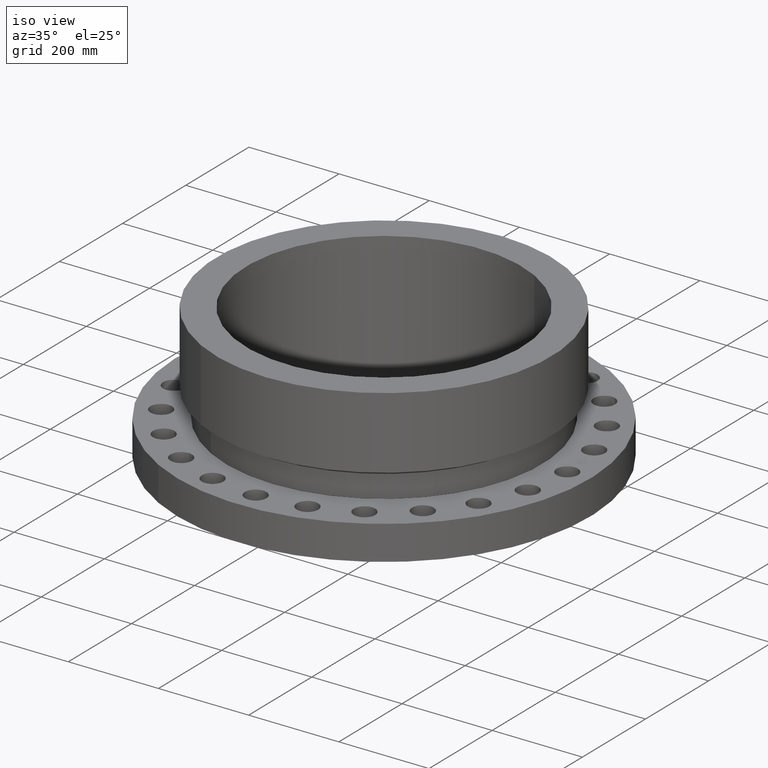
[diagram: clean part render]
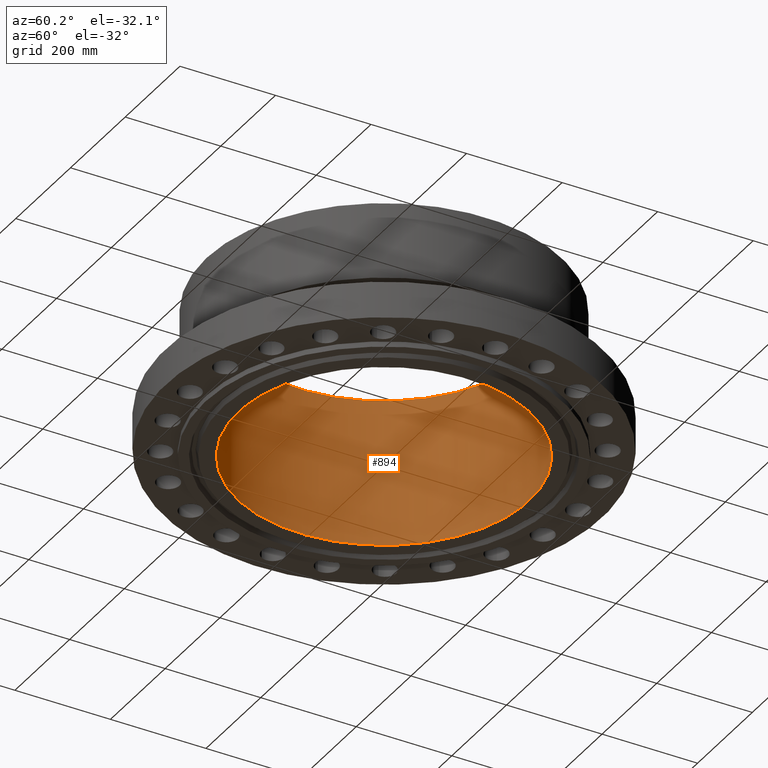
[diagram: tour spotlight — one face highlighted and labeled with its STEP entity id]
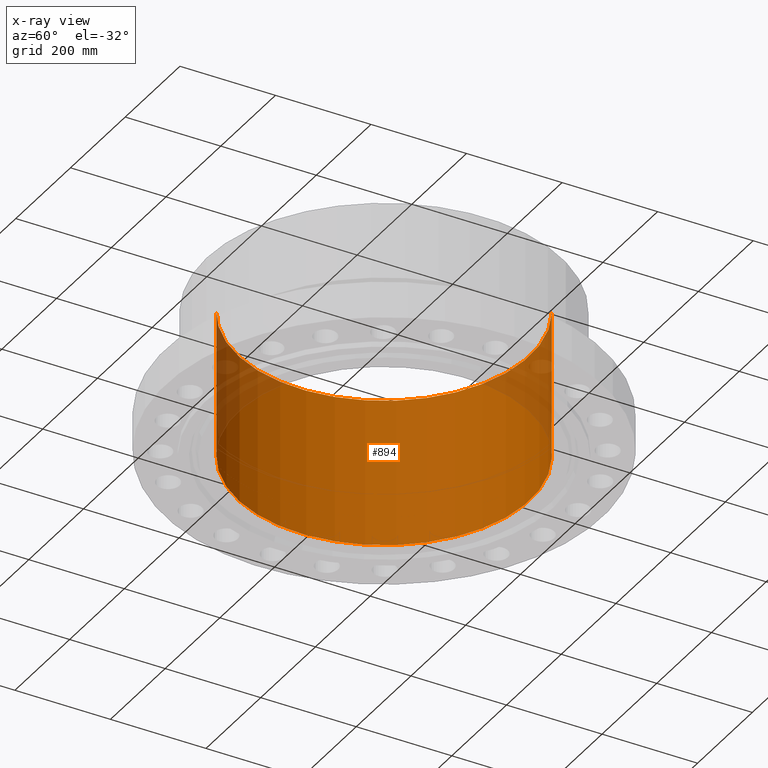
[diagram: x-ray of the same camera — body ghosted, this tour face saturated]
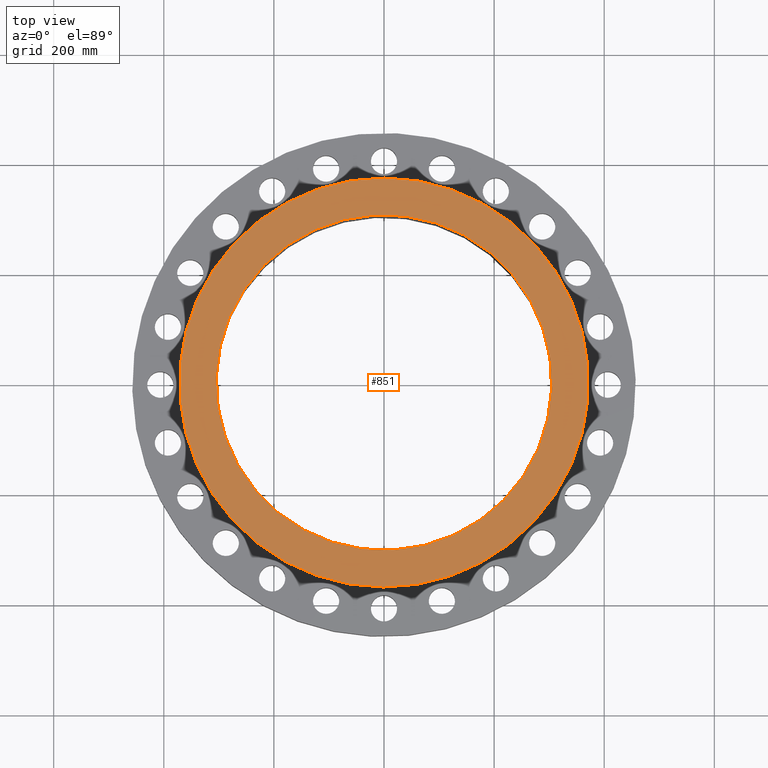
[diagram: tour spotlight — one face highlighted and labeled with its STEP entity id]
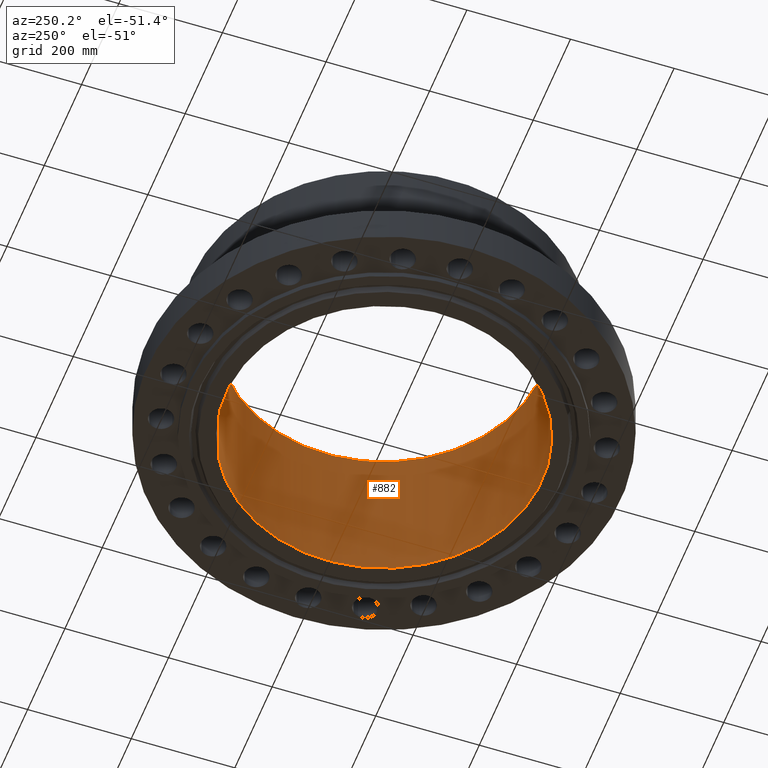
[diagram: tour spotlight — one face highlighted and labeled with its STEP entity id]
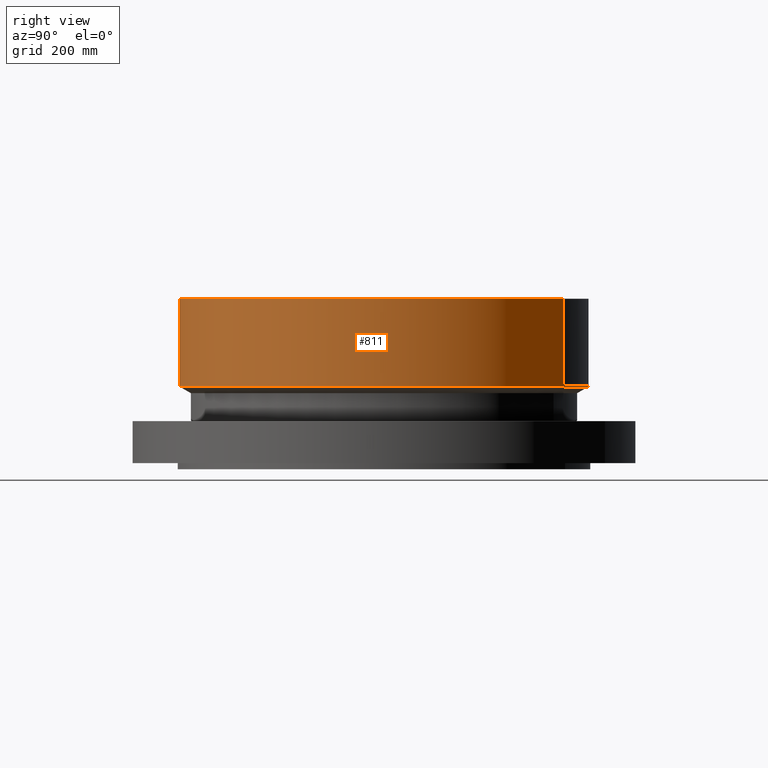
[diagram: tour spotlight — one face highlighted and labeled with its STEP entity id]
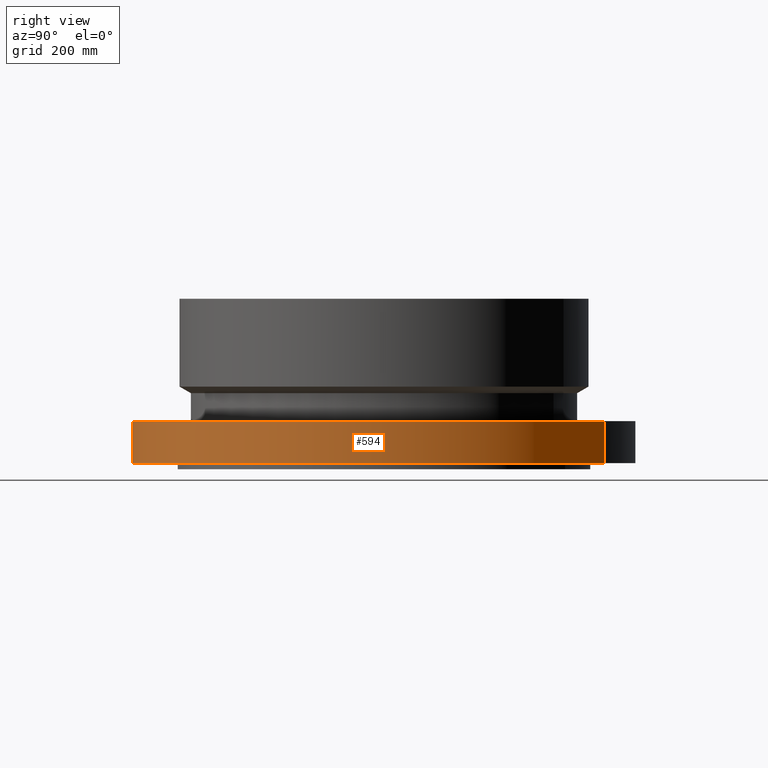
[diagram: tour spotlight — one face highlighted and labeled with its STEP entity id]
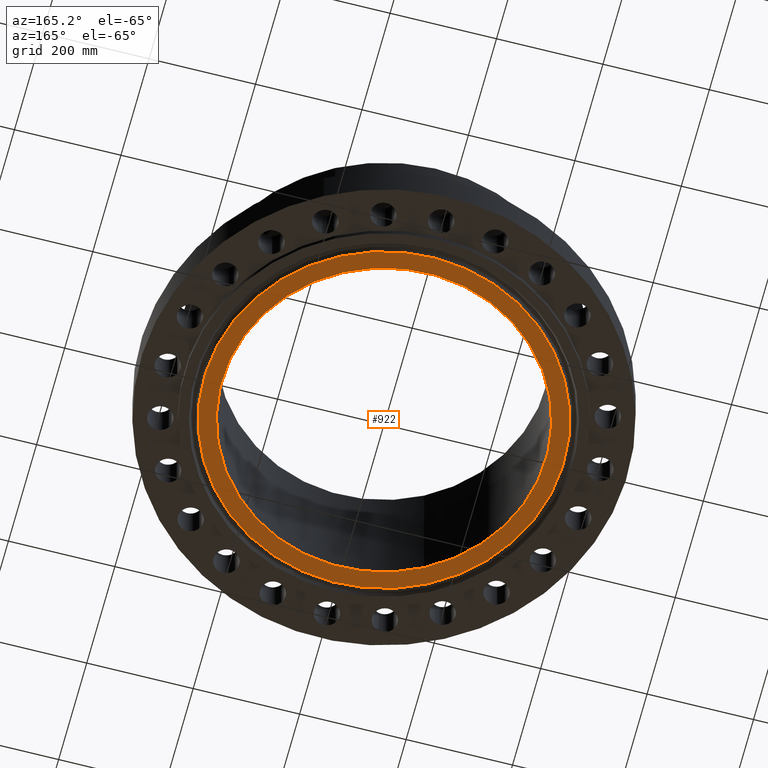
[diagram: tour spotlight — one face highlighted and labeled with its STEP entity id]
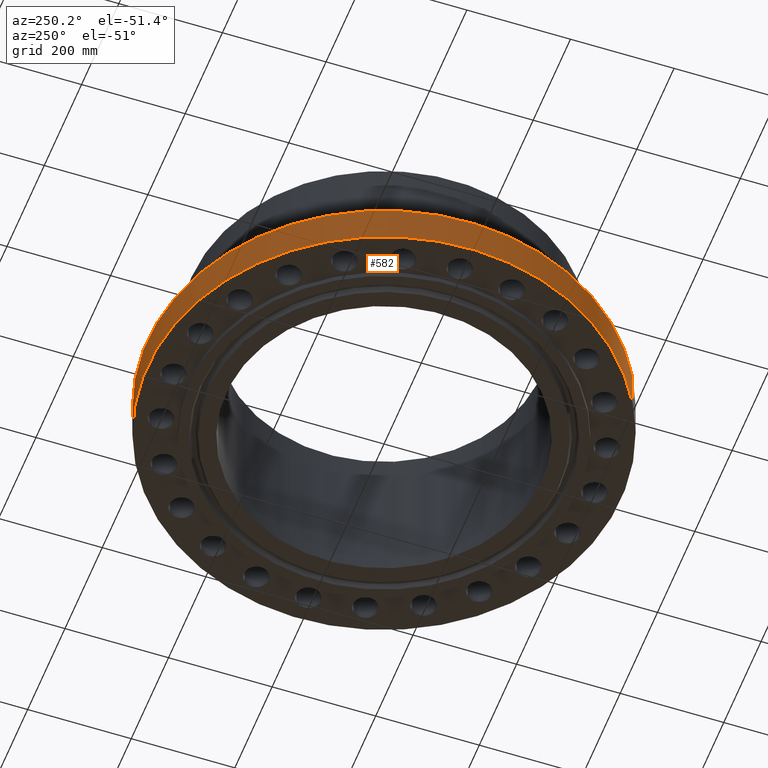
[diagram: tour spotlight — one face highlighted and labeled with its STEP entity id]
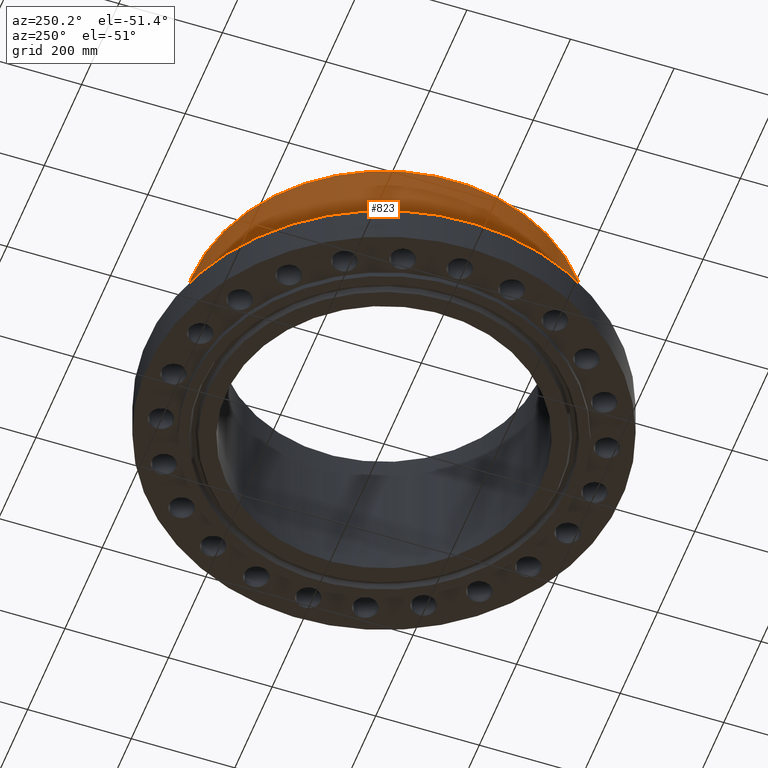
[diagram: tour spotlight — one face highlighted and labeled with its STEP entity id]
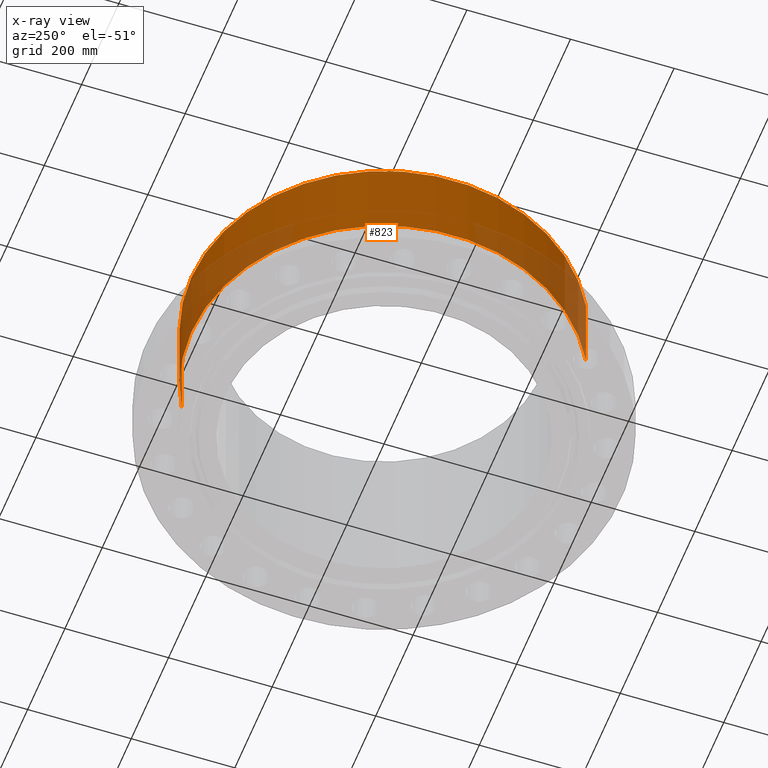
[diagram: x-ray of the same camera — body ghosted, this tour face saturated]
A machine part: a face-by-face anatomy tour. The part has 463 B-rep faces; the first image is the clean iso view, then the 8 largest visible faces are spotlighted one at a time (largest first), each with its STEP entity span.

Face 1 — auxiliary view, entity #894. An x-ray twin of the same camera follows (body ghosted, this face saturated) — the face is partly hidden behind the body. In plain terms, the highlighted cylindrical surface (partial cylindrical patch) has radius 304.8 mm, axis along (0, 0, -1).
Definition (entity closure, byte-faithful):
#835=AXIS2_PLACEMENT_3D('Circle Axis2P3D',#833,#834,$) ;
#855=AXIS2_PLACEMENT_3D('Cylinder Axis2P3D',#852,#853,#854) ;
#885=AXIS2_PLACEMENT_3D('Circle Axis2P3D',#883,#884,$) ;
#833=CARTESIAN_POINT('Axis2P3D Location',(0.,0.,11.75)) ;
#837=CARTESIAN_POINT('Vertex',(-5.75310646327,-10.5309907427,11.75)) ;
#839=CARTESIAN_POINT('Vertex',(5.75310646327,10.5309907427,11.75)) ;
#852=CARTESIAN_POINT('Axis2P3D Location',(0.,0.,5.65600000002)) ;
#857=CARTESIAN_POINT('Line Origine',(5.75310646327,10.5309907427,5.65600000002)) ;
#861=CARTESIAN_POINT('Vertex',(5.75310646327,10.5309907427,-0.438000000002)) ;
#868=CARTESIAN_POINT('Vertex',(-5.75310646327,-10.5309907427,-0.438000000002)) ;
#871=CARTESIAN_POINT('Line Origine',(-5.75310646327,-10.5309907427,5.65600000002)) ;
#883=CARTESIAN_POINT('Axis2P3D Location',(0.,0.,-0.438000000002)) ;
#834=DIRECTION('Axis2P3D Direction',(0.,0.,-0.0393700787402)) ;
#853=DIRECTION('Axis2P3D Direction',(0.,0.,-0.0393700787402)) ;
#854=DIRECTION('Axis2P3D XDirection',(-0.0188750212049,-0.0345504945626,0.)) ;
#858=DIRECTION('Vector Direction',(0.,0.,-0.0393700787402)) ;
#872=DIRECTION('Vector Direction',(0.,0.,-0.0393700787402)) ;
#884=DIRECTION('Axis2P3D Direction',(0.,0.,-0.0393700787402)) ;
#859=VECTOR('Line Direction',#858,0.0393700787402) ;
#873=VECTOR('Line Direction',#872,0.0393700787402) ;
#889=ORIENTED_EDGE('',*,*,#841,.F.) ;
#890=ORIENTED_EDGE('',*,*,#875,.T.) ;
#891=ORIENTED_EDGE('',*,*,#887,.T.) ;
#892=ORIENTED_EDGE('',*,*,#863,.F.) ;
#894=ADVANCED_FACE('PartBody',(#893),#856,.F.) ;
#836=CIRCLE('generated circle',#835,12.) ;
#886=CIRCLE('generated circle',#885,12.) ;
#856=CYLINDRICAL_SURFACE('generated cylinder',#855,12.) ;
#841=EDGE_CURVE('',#838,#840,#836,.T.) ;
#863=EDGE_CURVE('',#840,#862,#860,.T.) ;
#875=EDGE_CURVE('',#838,#869,#874,.T.) ;
#887=EDGE_CURVE('',#869,#862,#886,.T.) ;
#888=EDGE_LOOP('',(#889,#890,#891,#892)) ;
#893=FACE_OUTER_BOUND('',#888,.T.) ;
#860=LINE('Line',#857,#859) ;
#874=LINE('Line',#871,#873) ;
#838=VERTEX_POINT('',#837) ;
#840=VERTEX_POINT('',#839) ;
#862=VERTEX_POINT('',#861) ;
#869=VERTEX_POINT('',#868) ;

Face 2 — top view, entity #851. In plain terms, the highlighted planar face has unit normal (0, 0, -1).
Definition (entity closure, byte-faithful):
#795=AXIS2_PLACEMENT_3D('Circle Axis2P3D',#793,#794,$) ;
#814=AXIS2_PLACEMENT_3D('Circle Axis2P3D',#812,#813,$) ;
#827=AXIS2_PLACEMENT_3D('Plane Axis2P3D',#824,#825,#826) ;
#835=AXIS2_PLACEMENT_3D('Circle Axis2P3D',#833,#834,$) ;
#844=AXIS2_PLACEMENT_3D('Circle Axis2P3D',#842,#843,$) ;
#790=CARTESIAN_POINT('Vertex',(7.01159850211,12.8346449677,11.75)) ;
#793=CARTESIAN_POINT('Axis2P3D Location',(0.,0.,11.75)) ;
#797=CARTESIAN_POINT('Vertex',(-7.01159850211,-12.8346449677,11.75)) ;
#812=CARTESIAN_POINT('Axis2P3D Location',(0.,0.,11.75)) ;
#824=CARTESIAN_POINT('Axis2P3D Location',(0.,14.6250000001,11.75)) ;
#833=CARTESIAN_POINT('Axis2P3D Location',(0.,0.,11.75)) ;
#837=CARTESIAN_POINT('Vertex',(-5.75310646327,-10.5309907427,11.75)) ;
#839=CARTESIAN_POINT('Vertex',(5.75310646327,10.5309907427,11.75)) ;
#842=CARTESIAN_POINT('Axis2P3D Location',(0.,0.,11.75)) ;
#794=DIRECTION('Axis2P3D Direction',(0.,0.,-0.0393700787402)) ;
#813=DIRECTION('Axis2P3D Direction',(0.,0.,-0.0393700787402)) ;
#825=DIRECTION('Axis2P3D Direction',(0.,0.,-0.0393700787402)) ;
#826=DIRECTION('Axis2P3D XDirection',(0.0393700787402,0.,0.)) ;
#834=DIRECTION('Axis2P3D Direction',(0.,0.,-0.0393700787402)) ;
#843=DIRECTION('Axis2P3D Direction',(0.,0.,-0.0393700787402)) ;
#830=ORIENTED_EDGE('',*,*,#799,.F.) ;
#831=ORIENTED_EDGE('',*,*,#816,.F.) ;
#848=ORIENTED_EDGE('',*,*,#841,.T.) ;
#849=ORIENTED_EDGE('',*,*,#846,.T.) ;
#850=FACE_BOUND('',#847,.T.) ;
#851=ADVANCED_FACE('PartBody',(#832,#850),#828,.F.) ;
#796=CIRCLE('generated circle',#795,14.6250000001) ;
#815=CIRCLE('generated circle',#814,14.6250000001) ;
#836=CIRCLE('generated circle',#835,12.) ;
#845=CIRCLE('generated circle',#844,12.) ;
#799=EDGE_CURVE('',#791,#798,#796,.T.) ;
#816=EDGE_CURVE('',#798,#791,#815,.T.) ;
#841=EDGE_CURVE('',#838,#840,#836,.T.) ;
#846=EDGE_CURVE('',#840,#838,#845,.T.) ;
#829=EDGE_LOOP('',(#830,#831)) ;
#847=EDGE_LOOP('',(#848,#849)) ;
#832=FACE_OUTER_BOUND('',#829,.T.) ;
#828=PLANE('',#827) ;
#791=VERTEX_POINT('',#790) ;
#798=VERTEX_POINT('',#797) ;
#838=VERTEX_POINT('',#837) ;
#840=VERTEX_POINT('',#839) ;

Face 3 — auxiliary view, entity #882. In plain terms, the highlighted cylindrical surface (partial cylindrical patch) has radius 304.8 mm, axis along (0, 0, -1).
Definition (entity closure, byte-faithful):
#844=AXIS2_PLACEMENT_3D('Circle Axis2P3D',#842,#843,$) ;
#855=AXIS2_PLACEMENT_3D('Cylinder Axis2P3D',#852,#853,#854) ;
#866=AXIS2_PLACEMENT_3D('Circle Axis2P3D',#864,#865,$) ;
#837=CARTESIAN_POINT('Vertex',(-5.75310646327,-10.5309907427,11.75)) ;
#839=CARTESIAN_POINT('Vertex',(5.75310646327,10.5309907427,11.75)) ;
#842=CARTESIAN_POINT('Axis2P3D Location',(0.,0.,11.75)) ;
#852=CARTESIAN_POINT('Axis2P3D Location',(0.,0.,5.65600000002)) ;
#857=CARTESIAN_POINT('Line Origine',(5.75310646327,10.5309907427,5.65600000002)) ;
#861=CARTESIAN_POINT('Vertex',(5.75310646327,10.5309907427,-0.438000000002)) ;
#864=CARTESIAN_POINT('Axis2P3D Location',(0.,0.,-0.438000000002)) ;
#868=CARTESIAN_POINT('Vertex',(-5.75310646327,-10.5309907427,-0.438000000002)) ;
#871=CARTESIAN_POINT('Line Origine',(-5.75310646327,-10.5309907427,5.65600000002)) ;
#843=DIRECTION('Axis2P3D Direction',(0.,0.,-0.0393700787402)) ;
#853=DIRECTION('Axis2P3D Direction',(0.,0.,-0.0393700787402)) ;
#854=DIRECTION('Axis2P3D XDirection',(-0.0188750212049,-0.0345504945626,0.)) ;
#858=DIRECTION('Vector Direction',(0.,0.,-0.0393700787402)) ;
#865=DIRECTION('Axis2P3D Direction',(0.,0.,-0.0393700787402)) ;
#872=DIRECTION('Vector Direction',(0.,0.,-0.0393700787402)) ;
#859=VECTOR('Line Direction',#858,0.0393700787402) ;
#873=VECTOR('Line Direction',#872,0.0393700787402) ;
#877=ORIENTED_EDGE('',*,*,#846,.F.) ;
#878=ORIENTED_EDGE('',*,*,#863,.T.) ;
#879=ORIENTED_EDGE('',*,*,#870,.T.) ;
#880=ORIENTED_EDGE('',*,*,#875,.F.) ;
#882=ADVANCED_FACE('PartBody',(#881),#856,.F.) ;
#845=CIRCLE('generated circle',#844,12.) ;
#867=CIRCLE('generated circle',#866,12.) ;
#856=CYLINDRICAL_SURFACE('generated cylinder',#855,12.) ;
#846=EDGE_CURVE('',#840,#838,#845,.T.) ;
#863=EDGE_CURVE('',#840,#862,#860,.T.) ;
#870=EDGE_CURVE('',#862,#869,#867,.T.) ;
#875=EDGE_CURVE('',#838,#869,#874,.T.) ;
#876=EDGE_LOOP('',(#877,#878,#879,#880)) ;
#881=FACE_OUTER_BOUND('',#876,.T.) ;
#860=LINE('Line',#857,#859) ;
#874=LINE('Line',#871,#873) ;
#838=VERTEX_POINT('',#837) ;
#840=VERTEX_POINT('',#839) ;
#862=VERTEX_POINT('',#861) ;
#869=VERTEX_POINT('',#868) ;

Face 4 — right view, entity #811. In plain terms, the highlighted cylindrical surface (partial cylindrical patch) has radius 371.475 mm, axis along (0, 0, -1).
Definition (entity closure, byte-faithful):
#752=AXIS2_PLACEMENT_3D('Circle Axis2P3D',#750,#751,$) ;
#784=AXIS2_PLACEMENT_3D('Cylinder Axis2P3D',#781,#782,#783) ;
#795=AXIS2_PLACEMENT_3D('Circle Axis2P3D',#793,#794,$) ;
#747=CARTESIAN_POINT('Vertex',(7.01159850211,12.8346449677,5.47054046941)) ;
#750=CARTESIAN_POINT('Axis2P3D Location',(0.,0.,5.47054046941)) ;
#754=CARTESIAN_POINT('Vertex',(-7.01159850211,-12.8346449677,5.47054046941)) ;
#781=CARTESIAN_POINT('Axis2P3D Location',(0.,0.,5.65600000002)) ;
#786=CARTESIAN_POINT('Line Origine',(7.01159850211,12.8346449677,8.61027023473)) ;
#790=CARTESIAN_POINT('Vertex',(7.01159850211,12.8346449677,11.75)) ;
#793=CARTESIAN_POINT('Axis2P3D Location',(0.,0.,11.75)) ;
#797=CARTESIAN_POINT('Vertex',(-7.01159850211,-12.8346449677,11.75)) ;
#800=CARTESIAN_POINT('Line Origine',(-7.01159850211,-12.8346449677,8.61027023473)) ;
#751=DIRECTION('Axis2P3D Direction',(-0.,0.,0.0393700787402)) ;
#782=DIRECTION('Axis2P3D Direction',(0.,0.,-0.0393700787402)) ;
#783=DIRECTION('Axis2P3D XDirection',(-0.0188750212049,-0.0345504945626,0.)) ;
#787=DIRECTION('Vector Direction',(0.,0.,-0.0393700787402)) ;
#794=DIRECTION('Axis2P3D Direction',(0.,0.,-0.0393700787402)) ;
#801=DIRECTION('Vector Direction',(0.,0.,-0.0393700787402)) ;
#788=VECTOR('Line Direction',#787,0.0393700787402) ;
#802=VECTOR('Line Direction',#801,0.0393700787402) ;
#806=ORIENTED_EDGE('',*,*,#756,.F.) ;
#807=ORIENTED_EDGE('',*,*,#792,.T.) ;
#808=ORIENTED_EDGE('',*,*,#799,.T.) ;
#809=ORIENTED_EDGE('',*,*,#804,.F.) ;
#811=ADVANCED_FACE('PartBody',(#810),#785,.T.) ;
#753=CIRCLE('generated circle',#752,14.6250000001) ;
#796=CIRCLE('generated circle',#795,14.6250000001) ;
#785=CYLINDRICAL_SURFACE('generated cylinder',#784,14.6250000001) ;
#756=EDGE_CURVE('',#748,#755,#753,.F.) ;
#792=EDGE_CURVE('',#748,#791,#789,.F.) ;
#799=EDGE_CURVE('',#791,#798,#796,.T.) ;
#804=EDGE_CURVE('',#755,#798,#803,.F.) ;
#805=EDGE_LOOP('',(#806,#807,#808,#809)) ;
#810=FACE_OUTER_BOUND('',#805,.T.) ;
#789=LINE('Line',#786,#788) ;
#803=LINE('Line',#800,#802) ;
#748=VERTEX_POINT('',#747) ;
#755=VERTEX_POINT('',#754) ;
#791=VERTEX_POINT('',#790) ;
#798=VERTEX_POINT('',#797) ;

Face 5 — right view, entity #594. In plain terms, the highlighted cylindrical surface (partial cylindrical patch) has radius 457.2 mm, axis along (0, 0, -1).
Definition (entity closure, byte-faithful):
#91=AXIS2_PLACEMENT_3D('Circle Axis2P3D',#89,#90,$) ;
#555=AXIS2_PLACEMENT_3D('Cylinder Axis2P3D',#552,#553,#554) ;
#585=AXIS2_PLACEMENT_3D('Circle Axis2P3D',#583,#584,$) ;
#84=CARTESIAN_POINT('Vertex',(-8.62965969491,-15.7964861141,2.23792987641E-015)) ;
#86=CARTESIAN_POINT('Vertex',(8.62965969491,15.7964861141,2.23792987641E-015)) ;
#89=CARTESIAN_POINT('Axis2P3D Location',(0.,0.,0.)) ;
#552=CARTESIAN_POINT('Axis2P3D Location',(0.,0.,5.65600000002)) ;
#557=CARTESIAN_POINT('Line Origine',(-8.62965969491,-15.7964861141,1.50000000001)) ;
#561=CARTESIAN_POINT('Vertex',(-8.62965969491,-15.7964861141,3.00000000001)) ;
#568=CARTESIAN_POINT('Vertex',(8.62965969491,15.7964861141,3.00000000001)) ;
#571=CARTESIAN_POINT('Line Origine',(8.62965969491,15.7964861141,1.50000000001)) ;
#583=CARTESIAN_POINT('Axis2P3D Location',(0.,0.,3.00000000001)) ;
#90=DIRECTION('Axis2P3D Direction',(0.,0.,-0.0393700787402)) ;
#553=DIRECTION('Axis2P3D Direction',(0.,0.,-0.0393700787402)) ;
#554=DIRECTION('Axis2P3D XDirection',(0.0188750212049,0.0345504945626,0.)) ;
#558=DIRECTION('Vector Direction',(0.,0.,-0.0393700787402)) ;
#572=DIRECTION('Vector Direction',(0.,0.,-0.0393700787402)) ;
#584=DIRECTION('Axis2P3D Direction',(0.,0.,-0.0393700787402)) ;
#559=VECTOR('Line Direction',#558,0.0393700787402) ;
#573=VECTOR('Line Direction',#572,0.0393700787402) ;
#589=ORIENTED_EDGE('',*,*,#93,.F.) ;
#590=ORIENTED_EDGE('',*,*,#575,.T.) ;
#591=ORIENTED_EDGE('',*,*,#587,.T.) ;
#592=ORIENTED_EDGE('',*,*,#563,.F.) ;
#594=ADVANCED_FACE('PartBody',(#593),#556,.T.) ;
#92=CIRCLE('generated circle',#91,18.0000000001) ;
#586=CIRCLE('generated circle',#585,18.0000000001) ;
#556=CYLINDRICAL_SURFACE('generated cylinder',#555,18.0000000001) ;
#93=EDGE_CURVE('',#87,#85,#92,.T.) ;
#563=EDGE_CURVE('',#85,#562,#560,.F.) ;
#575=EDGE_CURVE('',#87,#569,#574,.F.) ;
#587=EDGE_CURVE('',#569,#562,#586,.T.) ;
#588=EDGE_LOOP('',(#589,#590,#591,#592)) ;
#593=FACE_OUTER_BOUND('',#588,.T.) ;
#560=LINE('Line',#557,#559) ;
#574=LINE('Line',#571,#573) ;
#85=VERTEX_POINT('',#84) ;
#87=VERTEX_POINT('',#86) ;
#562=VERTEX_POINT('',#561) ;
#569=VERTEX_POINT('',#568) ;

Face 6 — auxiliary view, entity #922. In plain terms, the highlighted planar face has unit normal (0, 0, -1).
Definition (entity closure, byte-faithful):
#866=AXIS2_PLACEMENT_3D('Circle Axis2P3D',#864,#865,$) ;
#885=AXIS2_PLACEMENT_3D('Circle Axis2P3D',#883,#884,$) ;
#898=AXIS2_PLACEMENT_3D('Plane Axis2P3D',#895,#896,#897) ;
#902=AXIS2_PLACEMENT_3D('Circle Axis2P3D',#900,#901,$) ;
#911=AXIS2_PLACEMENT_3D('Circle Axis2P3D',#909,#910,$) ;
#861=CARTESIAN_POINT('Vertex',(5.75310646327,10.5309907427,-0.438000000002)) ;
#864=CARTESIAN_POINT('Axis2P3D Location',(0.,0.,-0.438000000002)) ;
#868=CARTESIAN_POINT('Vertex',(-5.75310646327,-10.5309907427,-0.438000000002)) ;
#883=CARTESIAN_POINT('Axis2P3D Location',(0.,0.,-0.438000000002)) ;
#895=CARTESIAN_POINT('Axis2P3D Location',(0.,13.2970000001,-0.438000000002)) ;
#900=CARTESIAN_POINT('Axis2P3D Location',(0.,0.,-0.438000000002)) ;
#904=CARTESIAN_POINT('Vertex',(-6.37492138685,-11.6692153255,-0.438000000002)) ;
#906=CARTESIAN_POINT('Vertex',(6.37492138685,11.6692153255,-0.438000000002)) ;
#909=CARTESIAN_POINT('Axis2P3D Location',(0.,0.,-0.438000000002)) ;
#865=DIRECTION('Axis2P3D Direction',(0.,0.,-0.0393700787402)) ;
#884=DIRECTION('Axis2P3D Direction',(0.,0.,-0.0393700787402)) ;
#896=DIRECTION('Axis2P3D Direction',(0.,0.,-0.0393700787402)) ;
#897=DIRECTION('Axis2P3D XDirection',(0.0393700787402,0.,0.)) ;
#901=DIRECTION('Axis2P3D Direction',(0.,0.,-0.0393700787402)) ;
#910=DIRECTION('Axis2P3D Direction',(0.,0.,-0.0393700787402)) ;
#915=ORIENTED_EDGE('',*,*,#908,.T.) ;
#916=ORIENTED_EDGE('',*,*,#913,.T.) ;
#919=ORIENTED_EDGE('',*,*,#870,.F.) ;
#920=ORIENTED_EDGE('',*,*,#887,.F.) ;
#921=FACE_BOUND('',#918,.T.) ;
#922=ADVANCED_FACE('PartBody',(#917,#921),#899,.T.) ;
#867=CIRCLE('generated circle',#866,12.) ;
#886=CIRCLE('generated circle',#885,12.) ;
#903=CIRCLE('generated circle',#902,13.2970000001) ;
#912=CIRCLE('generated circle',#911,13.2970000001) ;
#870=EDGE_CURVE('',#862,#869,#867,.T.) ;
#887=EDGE_CURVE('',#869,#862,#886,.T.) ;
#908=EDGE_CURVE('',#905,#907,#903,.T.) ;
#913=EDGE_CURVE('',#907,#905,#912,.T.) ;
#914=EDGE_LOOP('',(#915,#916)) ;
#918=EDGE_LOOP('',(#919,#920)) ;
#917=FACE_OUTER_BOUND('',#914,.T.) ;
#899=PLANE('',#898) ;
#862=VERTEX_POINT('',#861) ;
#869=VERTEX_POINT('',#868) ;
#905=VERTEX_POINT('',#904) ;
#907=VERTEX_POINT('',#906) ;

Face 7 — auxiliary view, entity #582. In plain terms, the highlighted cylindrical surface (partial cylindrical patch) has radius 457.2 mm, axis along (0, 0, -1).
Definition (entity closure, byte-faithful):
#82=AXIS2_PLACEMENT_3D('Circle Axis2P3D',#80,#81,$) ;
#555=AXIS2_PLACEMENT_3D('Cylinder Axis2P3D',#552,#553,#554) ;
#566=AXIS2_PLACEMENT_3D('Circle Axis2P3D',#564,#565,$) ;
#80=CARTESIAN_POINT('Axis2P3D Location',(0.,0.,0.)) ;
#84=CARTESIAN_POINT('Vertex',(-8.62965969491,-15.7964861141,2.23792987641E-015)) ;
#86=CARTESIAN_POINT('Vertex',(8.62965969491,15.7964861141,2.23792987641E-015)) ;
#552=CARTESIAN_POINT('Axis2P3D Location',(0.,0.,5.65600000002)) ;
#557=CARTESIAN_POINT('Line Origine',(-8.62965969491,-15.7964861141,1.50000000001)) ;
#561=CARTESIAN_POINT('Vertex',(-8.62965969491,-15.7964861141,3.00000000001)) ;
#564=CARTESIAN_POINT('Axis2P3D Location',(0.,0.,3.00000000001)) ;
#568=CARTESIAN_POINT('Vertex',(8.62965969491,15.7964861141,3.00000000001)) ;
#571=CARTESIAN_POINT('Line Origine',(8.62965969491,15.7964861141,1.50000000001)) ;
#81=DIRECTION('Axis2P3D Direction',(0.,0.,-0.0393700787402)) ;
#553=DIRECTION('Axis2P3D Direction',(0.,0.,-0.0393700787402)) ;
#554=DIRECTION('Axis2P3D XDirection',(0.0188750212049,0.0345504945626,0.)) ;
#558=DIRECTION('Vector Direction',(0.,0.,-0.0393700787402)) ;
#565=DIRECTION('Axis2P3D Direction',(0.,0.,-0.0393700787402)) ;
#572=DIRECTION('Vector Direction',(0.,0.,-0.0393700787402)) ;
#559=VECTOR('Line Direction',#558,0.0393700787402) ;
#573=VECTOR('Line Direction',#572,0.0393700787402) ;
#577=ORIENTED_EDGE('',*,*,#88,.F.) ;
#578=ORIENTED_EDGE('',*,*,#563,.T.) ;
#579=ORIENTED_EDGE('',*,*,#570,.T.) ;
#580=ORIENTED_EDGE('',*,*,#575,.F.) ;
#582=ADVANCED_FACE('PartBody',(#581),#556,.T.) ;
#83=CIRCLE('generated circle',#82,18.0000000001) ;
#567=CIRCLE('generated circle',#566,18.0000000001) ;
#556=CYLINDRICAL_SURFACE('generated cylinder',#555,18.0000000001) ;
#88=EDGE_CURVE('',#85,#87,#83,.T.) ;
#563=EDGE_CURVE('',#85,#562,#560,.F.) ;
#570=EDGE_CURVE('',#562,#569,#567,.T.) ;
#575=EDGE_CURVE('',#87,#569,#574,.F.) ;
#576=EDGE_LOOP('',(#577,#578,#579,#580)) ;
#581=FACE_OUTER_BOUND('',#576,.T.) ;
#560=LINE('Line',#557,#559) ;
#574=LINE('Line',#571,#573) ;
#85=VERTEX_POINT('',#84) ;
#87=VERTEX_POINT('',#86) ;
#562=VERTEX_POINT('',#561) ;
#569=VERTEX_POINT('',#568) ;

Face 8 — auxiliary view, entity #823. An x-ray twin of the same camera follows (body ghosted, this face saturated) — the face is partly hidden behind the body. In plain terms, the highlighted cylindrical surface (partial cylindrical patch) has radius 371.475 mm, axis along (0, 0, -1).
Definition (entity closure, byte-faithful):
#771=AXIS2_PLACEMENT_3D('Circle Axis2P3D',#769,#770,$) ;
#784=AXIS2_PLACEMENT_3D('Cylinder Axis2P3D',#781,#782,#783) ;
#814=AXIS2_PLACEMENT_3D('Circle Axis2P3D',#812,#813,$) ;
#747=CARTESIAN_POINT('Vertex',(7.01159850211,12.8346449677,5.47054046941)) ;
#754=CARTESIAN_POINT('Vertex',(-7.01159850211,-12.8346449677,5.47054046941)) ;
#769=CARTESIAN_POINT('Axis2P3D Location',(0.,0.,5.47054046941)) ;
#781=CARTESIAN_POINT('Axis2P3D Location',(0.,0.,5.65600000002)) ;
#786=CARTESIAN_POINT('Line Origine',(7.01159850211,12.8346449677,8.61027023473)) ;
#790=CARTESIAN_POINT('Vertex',(7.01159850211,12.8346449677,11.75)) ;
#797=CARTESIAN_POINT('Vertex',(-7.01159850211,-12.8346449677,11.75)) ;
#800=CARTESIAN_POINT('Line Origine',(-7.01159850211,-12.8346449677,8.61027023473)) ;
#812=CARTESIAN_POINT('Axis2P3D Location',(0.,0.,11.75)) ;
#770=DIRECTION('Axis2P3D Direction',(-0.,0.,0.0393700787402)) ;
#782=DIRECTION('Axis2P3D Direction',(0.,0.,-0.0393700787402)) ;
#783=DIRECTION('Axis2P3D XDirection',(-0.0188750212049,-0.0345504945626,0.)) ;
#787=DIRECTION('Vector Direction',(0.,0.,-0.0393700787402)) ;
#801=DIRECTION('Vector Direction',(0.,0.,-0.0393700787402)) ;
#813=DIRECTION('Axis2P3D Direction',(0.,0.,-0.0393700787402)) ;
#788=VECTOR('Line Direction',#787,0.0393700787402) ;
#802=VECTOR('Line Direction',#801,0.0393700787402) ;
#818=ORIENTED_EDGE('',*,*,#773,.F.) ;
#819=ORIENTED_EDGE('',*,*,#804,.T.) ;
#820=ORIENTED_EDGE('',*,*,#816,.T.) ;
#821=ORIENTED_EDGE('',*,*,#792,.F.) ;
#823=ADVANCED_FACE('PartBody',(#822),#785,.T.) ;
#772=CIRCLE('generated circle',#771,14.6250000001) ;
#815=CIRCLE('generated circle',#814,14.6250000001) ;
#785=CYLINDRICAL_SURFACE('generated cylinder',#784,14.6250000001) ;
#773=EDGE_CURVE('',#755,#748,#772,.F.) ;
#792=EDGE_CURVE('',#748,#791,#789,.F.) ;
#804=EDGE_CURVE('',#755,#798,#803,.F.) ;
#816=EDGE_CURVE('',#798,#791,#815,.T.) ;
#817=EDGE_LOOP('',(#818,#819,#820,#821)) ;
#822=FACE_OUTER_BOUND('',#817,.T.) ;
#789=LINE('Line',#786,#788) ;
#803=LINE('Line',#800,#802) ;
#748=VERTEX_POINT('',#747) ;
#755=VERTEX_POINT('',#754) ;
#791=VERTEX_POINT('',#790) ;
#798=VERTEX_POINT('',#797) ;